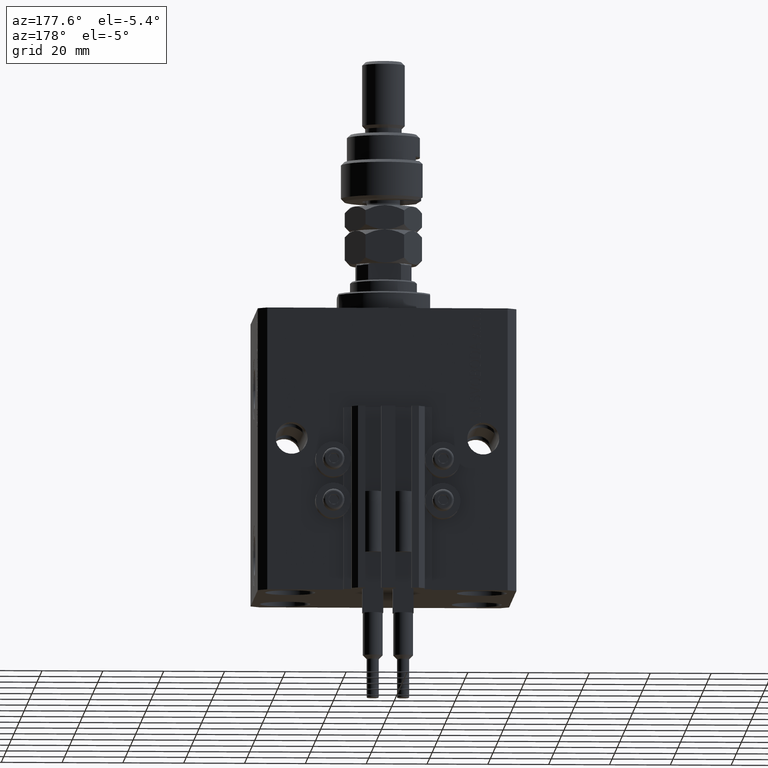
[diagram: clean part render]
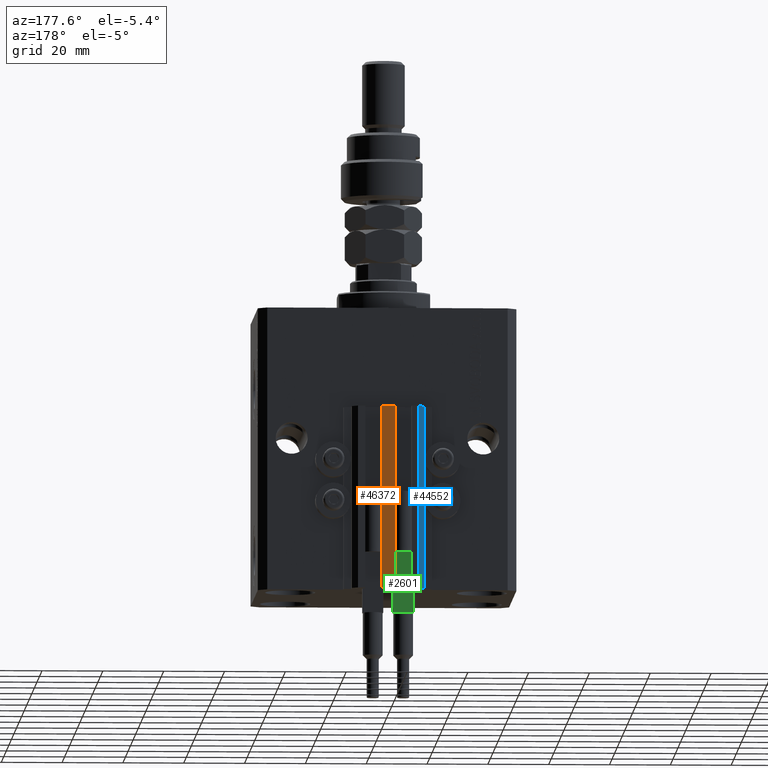
[diagram: same view with three faces highlighted in distinct colors, each labeled with its STEP entity id]
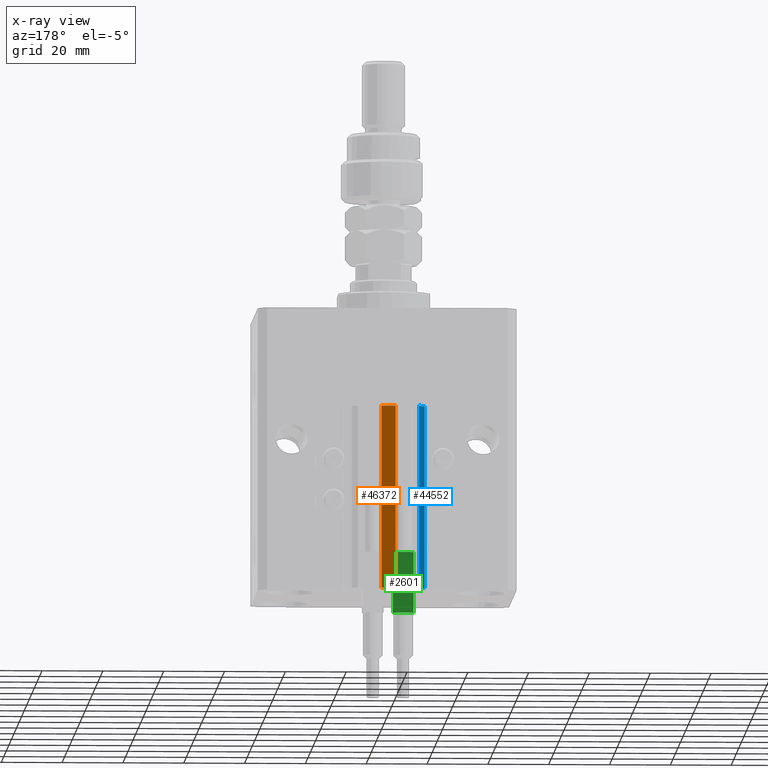
[diagram: x-ray of the same camera — body ghosted, the three highlighted faces saturated]
A machine part, auxiliary view with three faces highlighted in distinct colors.
The next image is the same camera in x-ray (body ghosted, the three faces saturated) — at least one of them is partly hidden behind the body in this view.
Their STEP definitions:

[orange] entity #46372 — the highlighted planar face has unit normal (0, -1, 0).
#541 = VECTOR ( 'NONE', #29779, 1000.000000000000000 ) ;
#1294 = CARTESIAN_POINT ( 'NONE',  ( 2.349999999999999645, 39.50000000000000711, -93.00000000000000000 ) ) ;
#2819 = EDGE_LOOP ( 'NONE', ( #50851, #30024, #26541, #11539 ) ) ;
#6423 = CARTESIAN_POINT ( 'NONE',  ( -2.350000000000003642, 39.50000000000000711, -33.00000000000000000 ) ) ;
#6445 = DIRECTION ( 'NONE',  ( 0.000000000000000000, -1.000000000000000000, 0.000000000000000000 ) ) ;
#8382 = EDGE_CURVE ( 'NONE', #41595, #43031, #10349, .T. ) ;
#8418 = EDGE_CURVE ( 'NONE', #15626, #41595, #18981, .T. ) ;
#8699 = EDGE_CURVE ( 'NONE', #36838, #43031, #13839, .T. ) ;
#9831 = DIRECTION ( 'NONE',  ( 1.000000000000000000, 0.000000000000000000, 0.000000000000000000 ) ) ;
#10349 = LINE ( 'NONE', #6423, #44815 ) ;
#11260 = CARTESIAN_POINT ( 'NONE',  ( 2.349999999999999645, 39.50000000000000711, -93.00000000000000000 ) ) ;
#11539 = ORIENTED_EDGE ( 'NONE', *, *, #8418, .T. ) ;
#13839 = LINE ( 'NONE', #1294, #541 ) ;
#14646 = CARTESIAN_POINT ( 'NONE',  ( -2.350000000000003642, 39.50000000000000711, -93.00000000000000000 ) ) ;
#15626 = VERTEX_POINT ( 'NONE', #14646 ) ;
#18981 = LINE ( 'NONE', #46989, #23097 ) ;
#19007 = DIRECTION ( 'NONE',  ( 0.000000000000000000, -0.000000000000000000, -1.000000000000000000 ) ) ;
#23097 = VECTOR ( 'NONE', #43053, 1000.000000000000000 ) ;
#23185 = CARTESIAN_POINT ( 'NONE',  ( -2.350000000000003642, 39.50000000000000711, -93.00000000000000000 ) ) ;
#24515 = CARTESIAN_POINT ( 'NONE',  ( 2.349999999999999645, 39.50000000000000711, -33.00000000000000000 ) ) ;
#26541 = ORIENTED_EDGE ( 'NONE', *, *, #46073, .F. ) ;
#29779 = DIRECTION ( 'NONE',  ( 0.000000000000000000, 0.000000000000000000, 1.000000000000000000 ) ) ;
#30024 = ORIENTED_EDGE ( 'NONE', *, *, #8699, .F. ) ;
#31283 = FACE_OUTER_BOUND ( 'NONE', #2819, .T. ) ;
#36838 = VERTEX_POINT ( 'NONE', #11260 ) ;
#37716 = DIRECTION ( 'NONE',  ( 1.000000000000000000, 0.000000000000000000, 0.000000000000000000 ) ) ;
#38337 = CARTESIAN_POINT ( 'NONE',  ( -2.350000000000003642, 39.50000000000000711, -33.00000000000000000 ) ) ;
#38502 = CARTESIAN_POINT ( 'NONE',  ( -2.350000000000003642, 39.50000000000000711, -93.00000000000000000 ) ) ;
#41489 = VECTOR ( 'NONE', #37716, 1000.000000000000000 ) ;
#41595 = VERTEX_POINT ( 'NONE', #38337 ) ;
#43031 = VERTEX_POINT ( 'NONE', #24515 ) ;
#43053 = DIRECTION ( 'NONE',  ( 0.000000000000000000, 0.000000000000000000, 1.000000000000000000 ) ) ;
#44815 = VECTOR ( 'NONE', #9831, 1000.000000000000000 ) ;
#46073 = EDGE_CURVE ( 'NONE', #15626, #36838, #50035, .T. ) ;
#46372 = ADVANCED_FACE ( 'NONE', ( #31283 ), #50687, .F. ) ;
#46989 = CARTESIAN_POINT ( 'NONE',  ( -2.350000000000003642, 39.50000000000000711, -93.00000000000000000 ) ) ;
#49009 = AXIS2_PLACEMENT_3D ( 'NONE', #23185, #6445, #19007 ) ;
#50035 = LINE ( 'NONE', #38502, #41489 ) ;
#50687 = PLANE ( 'NONE',  #49009 ) ;
#50851 = ORIENTED_EDGE ( 'NONE', *, *, #8382, .T. ) ;

[blue] entity #44552 — the highlighted planar face has unit normal (-0.7071, 0.7071, 0).
#1779 = VERTEX_POINT ( 'NONE', #20273 ) ;
#1788 = ORIENTED_EDGE ( 'NONE', *, *, #16452, .F. ) ;
#2431 = CARTESIAN_POINT ( 'NONE',  ( -10.00000000000000000, 39.49999999999999289, -93.00000000000000000 ) ) ;
#2616 = DIRECTION ( 'NONE',  ( 0.000000000000000000, 0.000000000000000000, 1.000000000000000000 ) ) ;
#4541 = CARTESIAN_POINT ( 'NONE',  ( -12.00000000000000000, 37.49999999999999289, -93.00000000000000000 ) ) ;
#5213 = ORIENTED_EDGE ( 'NONE', *, *, #15738, .T. ) ;
#6406 = CARTESIAN_POINT ( 'NONE',  ( -10.00000000000000000, 39.49999999999999289, -93.00000000000000000 ) ) ;
#8238 = FACE_OUTER_BOUND ( 'NONE', #23240, .T. ) ;
#8354 = EDGE_CURVE ( 'NONE', #11341, #36080, #10615, .T. ) ;
#10615 = LINE ( 'NONE', #13755, #30633 ) ;
#11341 = VERTEX_POINT ( 'NONE', #6406 ) ;
#11816 = EDGE_CURVE ( 'NONE', #11341, #13020, #38260, .T. ) ;
#13020 = VERTEX_POINT ( 'NONE', #27633 ) ;
#13755 = CARTESIAN_POINT ( 'NONE',  ( -10.00000000000000000, 39.49999999999999289, -93.00000000000000000 ) ) ;
#14084 = VECTOR ( 'NONE', #2616, 1000.000000000000000 ) ;
#15738 = EDGE_CURVE ( 'NONE', #36080, #1779, #22480, .T. ) ;
#16452 = EDGE_CURVE ( 'NONE', #13020, #1779, #26150, .T. ) ;
#20273 = CARTESIAN_POINT ( 'NONE',  ( -12.00000000000000000, 37.49999999999999289, -33.00000000000000000 ) ) ;
#21399 = AXIS2_PLACEMENT_3D ( 'NONE', #39890, #24182, #44593 ) ;
#22480 = LINE ( 'NONE', #38448, #14084 ) ;
#23240 = EDGE_LOOP ( 'NONE', ( #1788, #26774, #48823, #5213 ) ) ;
#24081 = VECTOR ( 'NONE', #33549, 1000.000000000000000 ) ;
#24182 = DIRECTION ( 'NONE',  ( -0.7071067811865479058, 0.7071067811865472397, 0.000000000000000000 ) ) ;
#26150 = LINE ( 'NONE', #37679, #37449 ) ;
#26556 = DIRECTION ( 'NONE',  ( -0.7071067811865472397, -0.7071067811865479058, 0.000000000000000000 ) ) ;
#26774 = ORIENTED_EDGE ( 'NONE', *, *, #11816, .F. ) ;
#27633 = CARTESIAN_POINT ( 'NONE',  ( -10.00000000000000000, 39.49999999999999289, -33.00000000000000000 ) ) ;
#30633 = VECTOR ( 'NONE', #26556, 999.9999999999998863 ) ;
#33549 = DIRECTION ( 'NONE',  ( 0.000000000000000000, 0.000000000000000000, 1.000000000000000000 ) ) ;
#36080 = VERTEX_POINT ( 'NONE', #4541 ) ;
#37449 = VECTOR ( 'NONE', #42119, 999.9999999999998863 ) ;
#37679 = CARTESIAN_POINT ( 'NONE',  ( -10.00000000000000000, 39.49999999999999289, -33.00000000000000000 ) ) ;
#38260 = LINE ( 'NONE', #2431, #24081 ) ;
#38448 = CARTESIAN_POINT ( 'NONE',  ( -12.00000000000000000, 37.49999999999999289, -93.00000000000000000 ) ) ;
#39890 = CARTESIAN_POINT ( 'NONE',  ( -10.00000000000000000, 39.49999999999999289, -93.00000000000000000 ) ) ;
#42119 = DIRECTION ( 'NONE',  ( -0.7071067811865472397, -0.7071067811865479058, 0.000000000000000000 ) ) ;
#44552 = ADVANCED_FACE ( 'NONE', ( #8238 ), #51702, .T. ) ;
#44593 = DIRECTION ( 'NONE',  ( -0.7071067811865472397, -0.7071067811865479058, 0.000000000000000000 ) ) ;
#48823 = ORIENTED_EDGE ( 'NONE', *, *, #8354, .T. ) ;
#51702 = PLANE ( 'NONE',  #21399 ) ;

[green] entity #2601 — the highlighted planar face has unit normal (0, -1, 0).
#535 = DIRECTION ( 'NONE',  ( 0.000000000000000000, -0.000000000000000000, -1.000000000000000000 ) ) ;
#851 = VECTOR ( 'NONE', #9097, 1000.000000000000000 ) ;
#877 = VERTEX_POINT ( 'NONE', #20102 ) ;
#1261 = LINE ( 'NONE', #5955, #10739 ) ;
#1727 = VERTEX_POINT ( 'NONE', #23440 ) ;
#2601 = ADVANCED_FACE ( 'NONE', ( #41507 ), #8389, .F. ) ;
#2605 = VERTEX_POINT ( 'NONE', #9598 ) ;
#5667 = DIRECTION ( 'NONE',  ( -1.000000000000000000, -0.000000000000000000, -0.000000000000000000 ) ) ;
#5955 = CARTESIAN_POINT ( 'NONE',  ( -3.399999999999999911, 1.500000000000000000, 20.00000000000000000 ) ) ;
#6186 = LINE ( 'NONE', #22139, #35702 ) ;
#6194 = CARTESIAN_POINT ( 'NONE',  ( 2.883140648667699146, 1.500000000000000000, 40.00000000000000000 ) ) ;
#8389 = PLANE ( 'NONE',  #32191 ) ;
#9097 = DIRECTION ( 'NONE',  ( -1.000000000000000000, -0.000000000000000000, -0.000000000000000000 ) ) ;
#9598 = CARTESIAN_POINT ( 'NONE',  ( 3.400000000000000355, 1.500000000000000000, 40.00000000000000000 ) ) ;
#10153 = CARTESIAN_POINT ( 'NONE',  ( 3.400000000000000355, 1.500000000000000000, 40.00000000000000000 ) ) ;
#10739 = VECTOR ( 'NONE', #21915, 1000.000000000000000 ) ;
#10804 = VERTEX_POINT ( 'NONE', #47415 ) ;
#11871 = CARTESIAN_POINT ( 'NONE',  ( -2.883140648667699146, 1.500000000000000000, 40.00000000000000000 ) ) ;
#12904 = VERTEX_POINT ( 'NONE', #6194 ) ;
#13776 = CARTESIAN_POINT ( 'NONE',  ( -3.399999999999999911, 1.500000000000000000, 40.00000000000000000 ) ) ;
#14863 = EDGE_CURVE ( 'NONE', #1727, #877, #1261, .T. ) ;
#15844 = CARTESIAN_POINT ( 'NONE',  ( -3.399999999999999911, 1.500000000000000000, 40.00000000000000000 ) ) ;
#16935 = EDGE_CURVE ( 'NONE', #30046, #39937, #24225, .T. ) ;
#18144 = CARTESIAN_POINT ( 'NONE',  ( -3.399999999999999911, 1.500000000000000000, 40.00000000000000000 ) ) ;
#18216 = DIRECTION ( 'NONE',  ( -1.000000000000000000, -0.000000000000000000, -0.000000000000000000 ) ) ;
#18911 = CARTESIAN_POINT ( 'NONE',  ( -3.051229260478471428, 1.500000000000000000, 20.00000000000000000 ) ) ;
#19894 = EDGE_CURVE ( 'NONE', #2605, #1727, #45744, .T. ) ;
#20102 = CARTESIAN_POINT ( 'NONE',  ( 3.051229260478471428, 1.500000000000000000, 20.00000000000000000 ) ) ;
#20356 = ORIENTED_EDGE ( 'NONE', *, *, #16935, .F. ) ;
#20652 = VERTEX_POINT ( 'NONE', #18911 ) ;
#21118 = CARTESIAN_POINT ( 'NONE',  ( -3.399999999999999911, 1.500000000000000000, 20.00000000000000000 ) ) ;
#21444 = CARTESIAN_POINT ( 'NONE',  ( -3.399999999999999911, 1.500000000000000000, 20.00000000000000000 ) ) ;
#21915 = DIRECTION ( 'NONE',  ( -1.000000000000000000, -0.000000000000000000, -0.000000000000000000 ) ) ;
#22067 = LINE ( 'NONE', #18144, #51748 ) ;
#22139 = CARTESIAN_POINT ( 'NONE',  ( -3.399999999999999911, 1.500000000000000000, 40.00000000000000000 ) ) ;
#22950 = EDGE_CURVE ( 'NONE', #39937, #10804, #22067, .T. ) ;
#23440 = CARTESIAN_POINT ( 'NONE',  ( 3.400000000000000355, 1.500000000000000000, 20.00000000000000000 ) ) ;
#23953 = EDGE_CURVE ( 'NONE', #12904, #30046, #25802, .T. ) ;
#24225 = LINE ( 'NONE', #36510, #42554 ) ;
#24547 = EDGE_LOOP ( 'NONE', ( #50715, #26079, #51589, #27392, #20356, #51232, #37810, #24728 ) ) ;
#24728 = ORIENTED_EDGE ( 'NONE', *, *, #19894, .T. ) ;
#25800 = DIRECTION ( 'NONE',  ( 0.000000000000000000, -1.000000000000000000, 0.000000000000000000 ) ) ;
#25802 = LINE ( 'NONE', #41509, #40863 ) ;
#26079 = ORIENTED_EDGE ( 'NONE', *, *, #31461, .T. ) ;
#27392 = ORIENTED_EDGE ( 'NONE', *, *, #22950, .F. ) ;
#28592 = EDGE_CURVE ( 'NONE', #20652, #10804, #28964, .T. ) ;
#28964 = LINE ( 'NONE', #21118, #851 ) ;
#30046 = VERTEX_POINT ( 'NONE', #11871 ) ;
#30061 = DIRECTION ( 'NONE',  ( -1.000000000000000000, -0.000000000000000000, -0.000000000000000000 ) ) ;
#31461 = EDGE_CURVE ( 'NONE', #877, #20652, #45535, .T. ) ;
#32191 = AXIS2_PLACEMENT_3D ( 'NONE', #13776, #25800, #535 ) ;
#35702 = VECTOR ( 'NONE', #18216, 1000.000000000000000 ) ;
#36510 = CARTESIAN_POINT ( 'NONE',  ( -3.399999999999999911, 1.500000000000000000, 40.00000000000000000 ) ) ;
#37810 = ORIENTED_EDGE ( 'NONE', *, *, #46461, .F. ) ;
#39406 = VECTOR ( 'NONE', #30061, 1000.000000000000000 ) ;
#39937 = VERTEX_POINT ( 'NONE', #15844 ) ;
#40863 = VECTOR ( 'NONE', #5667, 1000.000000000000000 ) ;
#41507 = FACE_OUTER_BOUND ( 'NONE', #24547, .T. ) ;
#41509 = CARTESIAN_POINT ( 'NONE',  ( -3.399999999999999911, 1.500000000000000000, 40.00000000000000000 ) ) ;
#41951 = DIRECTION ( 'NONE',  ( -0.000000000000000000, -0.000000000000000000, -1.000000000000000000 ) ) ;
#42554 = VECTOR ( 'NONE', #48572, 1000.000000000000000 ) ;
#43494 = VECTOR ( 'NONE', #49679, 1000.000000000000000 ) ;
#45535 = LINE ( 'NONE', #21444, #39406 ) ;
#45744 = LINE ( 'NONE', #10153, #43494 ) ;
#46461 = EDGE_CURVE ( 'NONE', #2605, #12904, #6186, .T. ) ;
#47415 = CARTESIAN_POINT ( 'NONE',  ( -3.399999999999999911, 1.500000000000000000, 20.00000000000000000 ) ) ;
#48572 = DIRECTION ( 'NONE',  ( -1.000000000000000000, -0.000000000000000000, -0.000000000000000000 ) ) ;
#49679 = DIRECTION ( 'NONE',  ( -0.000000000000000000, -0.000000000000000000, -1.000000000000000000 ) ) ;
#50715 = ORIENTED_EDGE ( 'NONE', *, *, #14863, .T. ) ;
#51232 = ORIENTED_EDGE ( 'NONE', *, *, #23953, .F. ) ;
#51589 = ORIENTED_EDGE ( 'NONE', *, *, #28592, .T. ) ;
#51748 = VECTOR ( 'NONE', #41951, 1000.000000000000000 ) ;